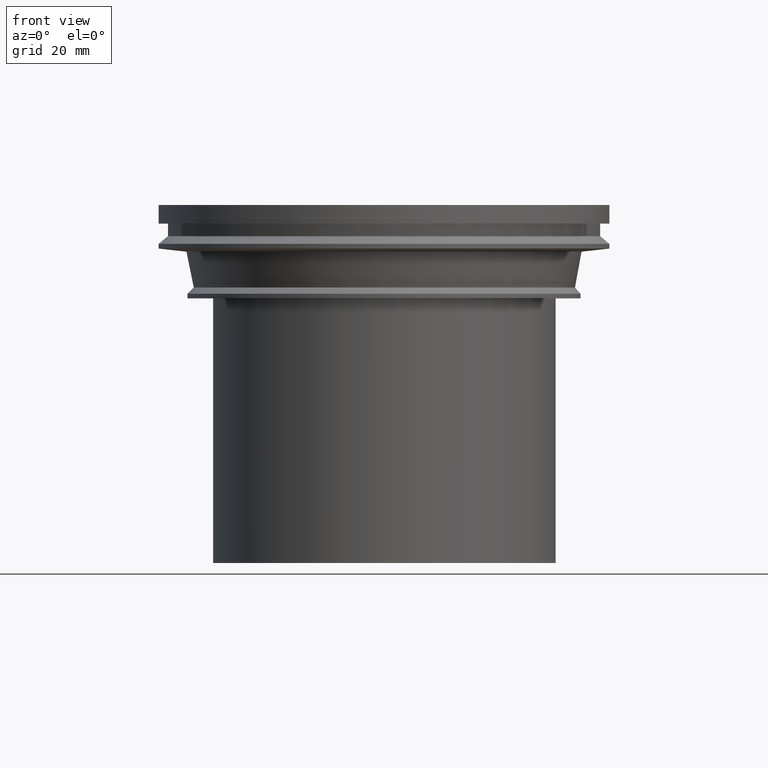
[diagram: clean part render]
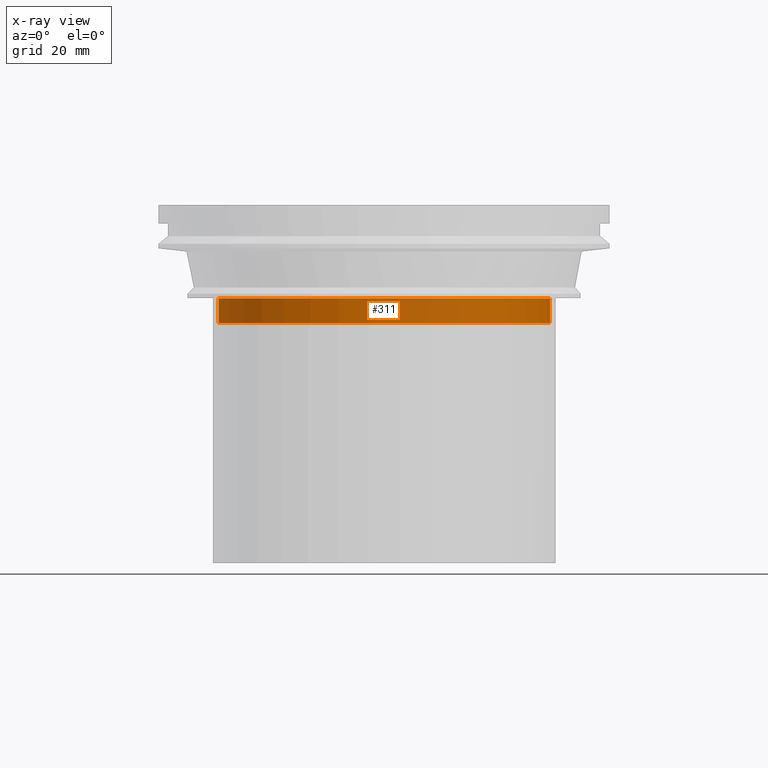
[diagram: x-ray — body ghosted, one internal face saturated and labeled with its STEP entity id]
A machine part, front view, then the same camera in x-ray: the body is ghosted and one INTERNAL B-rep face — a face not visible from any outside direction — is saturated and labeled: STEP entity #311.
In plain terms, the highlighted cylindrical surface (bore or boss wall) has radius 53.223 mm, axis along (0, 0, -1).
Its self-contained STEP definition (entity closure, byte-faithful):
#46=CYLINDRICAL_SURFACE('',#386,53.223);
#90=ORIENTED_EDGE('',*,*,#122,.T.);
#91=ORIENTED_EDGE('',*,*,#121,.F.);
#121=EDGE_CURVE('',#147,#147,#173,.T.);
#122=EDGE_CURVE('',#148,#148,#174,.T.);
#147=VERTEX_POINT('',#572);
#148=VERTEX_POINT('',#575);
#173=CIRCLE('',#385,53.223);
#174=CIRCLE('',#387,53.223);
#220=EDGE_LOOP('',(#90));
#221=EDGE_LOOP('',(#91));
#272=FACE_BOUND('',#220,.T.);
#273=FACE_BOUND('',#221,.T.);
#311=ADVANCED_FACE('',(#272,#273),#46,.T.);
#385=AXIS2_PLACEMENT_3D('',#571,#484,#485);
#386=AXIS2_PLACEMENT_3D('',#573,#486,#487);
#387=AXIS2_PLACEMENT_3D('',#574,#488,#489);
#484=DIRECTION('',(0.,0.,-1.));
#485=DIRECTION('',(-1.,0.,0.));
#486=DIRECTION('',(0.,0.,-1.));
#487=DIRECTION('',(-1.,0.,0.));
#488=DIRECTION('',(0.,0.,-1.));
#489=DIRECTION('',(-1.,0.,0.));
#571=CARTESIAN_POINT('',(0.,0.,-38.));
#572=CARTESIAN_POINT('',(-53.223,0.,-38.));
#573=CARTESIAN_POINT('',(0.,0.,-50.));
#574=CARTESIAN_POINT('',(0.,0.,-30.));
#575=CARTESIAN_POINT('',(-53.223,0.,-30.));